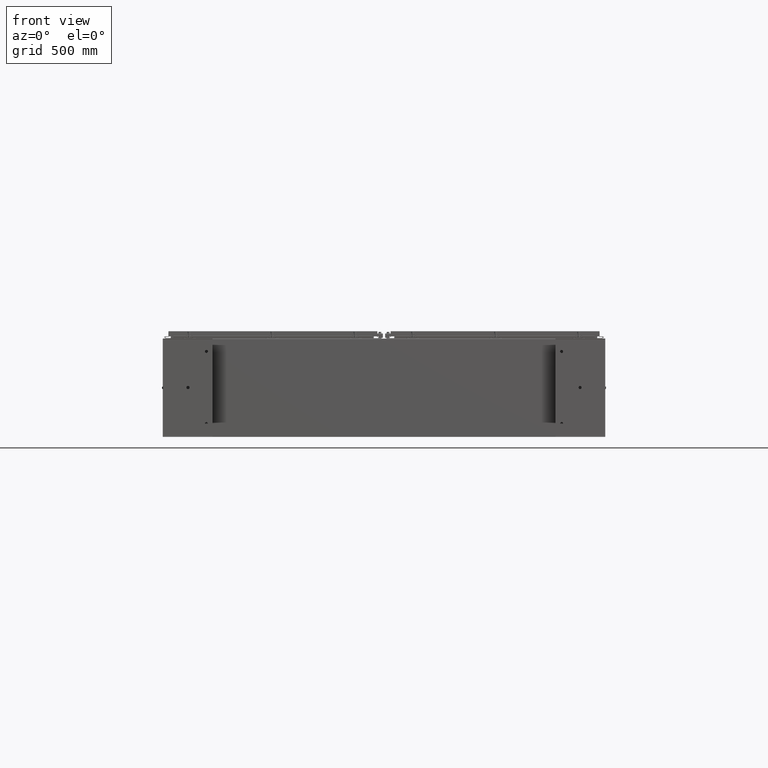
[diagram: clean part render]
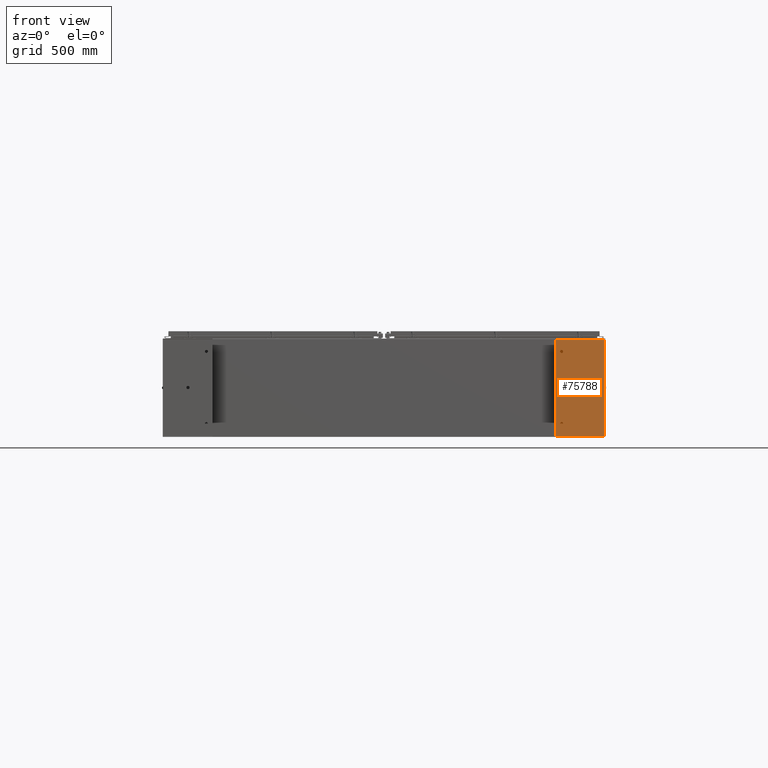
[diagram: same view with one face highlighted and labeled with its STEP entity id]
A machine part, front view. The second image highlights one B-rep face of the part: STEP entity #75788.
In plain terms, the highlighted planar face has unit normal (-0, -1, -0).
Its self-contained STEP definition (entity closure, byte-faithful):
#196 = CARTESIAN_POINT ( 'NONE',  ( 7.879000000000000400, -3.999999999999996900, -0.1049999999999290800 ) ) ;
#466 = CARTESIAN_POINT ( 'NONE',  ( -0.2500000000000000000, 3.061616997866015800E-017, -0.1049999999999990100 ) ) ;
#1251 = CARTESIAN_POINT ( 'NONE',  ( -7.878999999999980000, -3.999999999999992500, -0.1049999999998591500 ) ) ;
#5387 = VERTEX_POINT ( 'NONE', #47161 ) ;
#5665 = DIRECTION ( 'NONE',  ( -1.000000000000000000, -9.466330862652141700E-029, 0.0000000000000000000 ) ) ;
#7145 = DIRECTION ( 'NONE',  ( -9.466330862652141700E-029, -1.000000000000000000, 1.198498701752819500E-031 ) ) ;
#7701 = DIRECTION ( 'NONE',  ( -1.000000000000000000, -9.466330862652141700E-029, 0.0000000000000000000 ) ) ;
#7785 = FACE_BOUND ( 'NONE', #74615, .T. ) ;
#7988 = CARTESIAN_POINT ( 'NONE',  ( 0.0000000000000000000, 0.0000000000000000000, -0.1049999999999990100 ) ) ;
#8872 = ORIENTED_EDGE ( 'NONE', *, *, #35295, .F. ) ;
#10605 = VERTEX_POINT ( 'NONE', #16677 ) ;
#11441 = LINE ( 'NONE', #38894, #78430 ) ;
#11593 = ORIENTED_EDGE ( 'NONE', *, *, #34407, .T. ) ;
#11683 = AXIS2_PLACEMENT_3D ( 'NONE', #22330, #66481, #28661 ) ;
#12302 = VERTEX_POINT ( 'NONE', #466 ) ;
#12834 = CARTESIAN_POINT ( 'NONE',  ( 5.879000000000000400, -3.000000000000001800, -0.1049999999999290800 ) ) ;
#15300 = EDGE_LOOP ( 'NONE', ( #62009, #8872 ) ) ;
#15459 = EDGE_CURVE ( 'NONE', #50525, #78913, #32915, .T. ) ;
#16058 = EDGE_LOOP ( 'NONE', ( #62090, #27062 ) ) ;
#16133 = VECTOR ( 'NONE', #68496, 39.37007874015748100 ) ;
#16329 = LINE ( 'NONE', #79239, #64698 ) ;
#16677 = CARTESIAN_POINT ( 'NONE',  ( 7.879000000000003100, 4.000000000000000900, -0.1049999999999990100 ) ) ;
#17294 = EDGE_CURVE ( 'NONE', #31028, #12302, #72112, .T. ) ;
#18990 = ORIENTED_EDGE ( 'NONE', *, *, #15459, .F. ) ;
#19209 = DIRECTION ( 'NONE',  ( -1.000000000000000000, 0.0000000000000000000, 0.0000000000000000000 ) ) ;
#20102 = DIRECTION ( 'NONE',  ( -0.0000000000000000000, -1.198498701752371100E-031, 1.000000000000000000 ) ) ;
#21412 = VERTEX_POINT ( 'NONE', #63392 ) ;
#22330 = CARTESIAN_POINT ( 'NONE',  ( -5.878999999999996900, -2.999999999999966700, -0.1049999999999378200 ) ) ;
#24521 = PLANE ( 'NONE',  #54713 ) ;
#24588 = FACE_BOUND ( 'NONE', #15300, .T. ) ;
#27026 = DIRECTION ( 'NONE',  ( -1.000000000000000000, 0.0000000000000000000, 0.0000000000000000000 ) ) ;
#27062 = ORIENTED_EDGE ( 'NONE', *, *, #67286, .T. ) ;
#27084 = DIRECTION ( 'NONE',  ( 0.0000000000000000000, 1.198498701752371100E-031, -1.000000000000000000 ) ) ;
#27166 = VERTEX_POINT ( 'NONE', #52316 ) ;
#27195 = CARTESIAN_POINT ( 'NONE',  ( 5.879000000000000400, -3.000000000000001800, -0.1049999999999290800 ) ) ;
#28661 = DIRECTION ( 'NONE',  ( -1.000000000000000000, 0.0000000000000000000, 0.0000000000000000000 ) ) ;
#29153 = CIRCLE ( 'NONE', #64273, 0.2500000000000000000 ) ;
#31028 = VERTEX_POINT ( 'NONE', #80535 ) ;
#31786 = DIRECTION ( 'NONE',  ( -0.0000000000000000000, -1.198498701752371100E-031, 1.000000000000000000 ) ) ;
#32604 = AXIS2_PLACEMENT_3D ( 'NONE', #27195, #27084, #27026 ) ;
#32915 = LINE ( 'NONE', #1251, #16133 ) ;
#33818 = AXIS2_PLACEMENT_3D ( 'NONE', #69578, #31786, #75859 ) ;
#34407 = EDGE_CURVE ( 'NONE', #12302, #31028, #29153, .T. ) ;
#35295 = EDGE_CURVE ( 'NONE', #63787, #27166, #68532, .T. ) ;
#38894 = CARTESIAN_POINT ( 'NONE',  ( -7.878999999999980000, -3.999999999999992500, -0.1049999999998591500 ) ) ;
#39805 = ORIENTED_EDGE ( 'NONE', *, *, #17294, .T. ) ;
#40403 = CIRCLE ( 'NONE', #55092, 0.2499999999999998100 ) ;
#41333 = FACE_OUTER_BOUND ( 'NONE', #60142, .T. ) ;
#41556 = DIRECTION ( 'NONE',  ( -1.000000000000000000, -9.466330862652141700E-029, 0.0000000000000000000 ) ) ;
#41999 = CARTESIAN_POINT ( 'NONE',  ( 0.0000000000000000000, 0.0000000000000000000, -0.1049999999999990100 ) ) ;
#43534 = DIRECTION ( 'NONE',  ( -1.134538524924699500E-059, 1.198498701752371100E-031, -1.000000000000000000 ) ) ;
#46910 = EDGE_CURVE ( 'NONE', #10605, #5387, #16329, .T. ) ;
#47161 = CARTESIAN_POINT ( 'NONE',  ( -7.878999999999997800, 4.000000000000000900, -0.1049999999999290800 ) ) ;
#50263 = DIRECTION ( 'NONE',  ( -1.000000000000000000, -9.466330862652141700E-029, 0.0000000000000000000 ) ) ;
#50525 = VERTEX_POINT ( 'NONE', #55426 ) ;
#50775 = EDGE_CURVE ( 'NONE', #5387, #50525, #11441, .T. ) ;
#52316 = CARTESIAN_POINT ( 'NONE',  ( 6.129000000000000400, -3.000000000000001800, -0.1049999999999290800 ) ) ;
#53350 = ORIENTED_EDGE ( 'NONE', *, *, #50775, .F. ) ;
#54713 = AXIS2_PLACEMENT_3D ( 'NONE', #68695, #43534, #5665 ) ;
#54751 = EDGE_CURVE ( 'NONE', #62606, #21412, #79866, .T. ) ;
#55092 = AXIS2_PLACEMENT_3D ( 'NONE', #12834, #56840, #19209 ) ;
#55426 = CARTESIAN_POINT ( 'NONE',  ( -7.878999999999980000, -3.999999999999992500, -0.1049999999998591500 ) ) ;
#56840 = DIRECTION ( 'NONE',  ( 0.0000000000000000000, 1.198498701752371100E-031, -1.000000000000000000 ) ) ;
#57285 = EDGE_CURVE ( 'NONE', #27166, #63787, #40403, .T. ) ;
#57409 = EDGE_CURVE ( 'NONE', #78913, #10605, #78775, .T. ) ;
#60142 = EDGE_LOOP ( 'NONE', ( #69538, #18990, #53350, #64552 ) ) ;
#61635 = AXIS2_PLACEMENT_3D ( 'NONE', #41999, #66019, #50263 ) ;
#62009 = ORIENTED_EDGE ( 'NONE', *, *, #57285, .F. ) ;
#62090 = ORIENTED_EDGE ( 'NONE', *, *, #54751, .T. ) ;
#62129 = VECTOR ( 'NONE', #63489, 39.37007874015748100 ) ;
#62606 = VERTEX_POINT ( 'NONE', #77891 ) ;
#63392 = CARTESIAN_POINT ( 'NONE',  ( -6.128999999999996900, -2.999999999999966700, -0.1049999999999378200 ) ) ;
#63489 = DIRECTION ( 'NONE',  ( 9.466330862652141700E-029, 1.000000000000000000, -1.198498701752819500E-031 ) ) ;
#63787 = VERTEX_POINT ( 'NONE', #70148 ) ;
#64273 = AXIS2_PLACEMENT_3D ( 'NONE', #7988, #20102, #7701 ) ;
#64552 = ORIENTED_EDGE ( 'NONE', *, *, #46910, .F. ) ;
#64698 = VECTOR ( 'NONE', #41556, 39.37007874015748100 ) ;
#66019 = DIRECTION ( 'NONE',  ( -0.0000000000000000000, -1.198498701752371100E-031, 1.000000000000000000 ) ) ;
#66481 = DIRECTION ( 'NONE',  ( -0.0000000000000000000, -1.198498701752371100E-031, 1.000000000000000000 ) ) ;
#67286 = EDGE_CURVE ( 'NONE', #21412, #62606, #72746, .T. ) ;
#68496 = DIRECTION ( 'NONE',  ( 1.000000000000000000, 9.466330862652141700E-029, 0.0000000000000000000 ) ) ;
#68532 = CIRCLE ( 'NONE', #32604, 0.2499999999999998100 ) ;
#68695 = CARTESIAN_POINT ( 'NONE',  ( 7.879000000000003100, 4.000000000000000900, -0.1049999999999990100 ) ) ;
#69538 = ORIENTED_EDGE ( 'NONE', *, *, #57409, .F. ) ;
#69578 = CARTESIAN_POINT ( 'NONE',  ( -5.878999999999996900, -2.999999999999966700, -0.1049999999999378200 ) ) ;
#70148 = CARTESIAN_POINT ( 'NONE',  ( 5.629000000000000400, -3.000000000000001800, -0.1049999999999290800 ) ) ;
#72112 = CIRCLE ( 'NONE', #61635, 0.2500000000000000000 ) ;
#72746 = CIRCLE ( 'NONE', #33818, 0.2499999999999998100 ) ;
#74615 = EDGE_LOOP ( 'NONE', ( #39805, #11593 ) ) ;
#74910 = FACE_BOUND ( 'NONE', #16058, .T. ) ;
#75788 = ADVANCED_FACE ( 'NONE', ( #41333, #7785, #74910, #24588 ), #24521, .T. ) ;
#75859 = DIRECTION ( 'NONE',  ( -1.000000000000000000, 0.0000000000000000000, 0.0000000000000000000 ) ) ;
#77891 = CARTESIAN_POINT ( 'NONE',  ( -5.628999999999996900, -2.999999999999966700, -0.1049999999999378200 ) ) ;
#78430 = VECTOR ( 'NONE', #7145, 39.37007874015748100 ) ;
#78775 = LINE ( 'NONE', #196, #62129 ) ;
#78913 = VERTEX_POINT ( 'NONE', #79466 ) ;
#79239 = CARTESIAN_POINT ( 'NONE',  ( -7.878999999999997800, 4.000000000000000900, -0.1049999999999290800 ) ) ;
#79466 = CARTESIAN_POINT ( 'NONE',  ( 7.879000000000000400, -3.999999999999996900, -0.1049999999999290800 ) ) ;
#79866 = CIRCLE ( 'NONE', #11683, 0.2499999999999998100 ) ;
#80535 = CARTESIAN_POINT ( 'NONE',  ( 0.2500000000000000000, 2.365953031994733000E-029, -0.1049999999999990100 ) ) ;